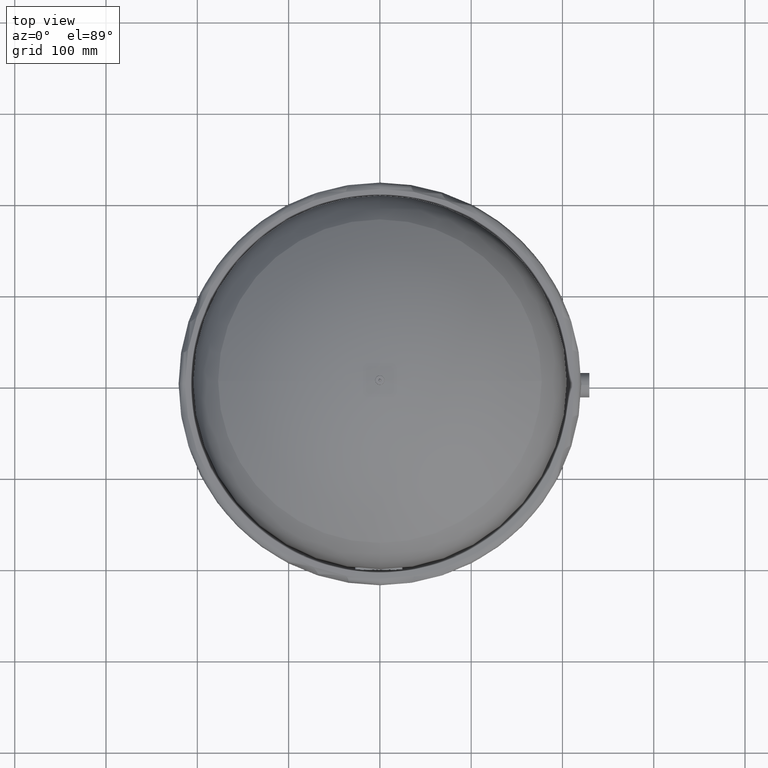
[diagram: clean part render]
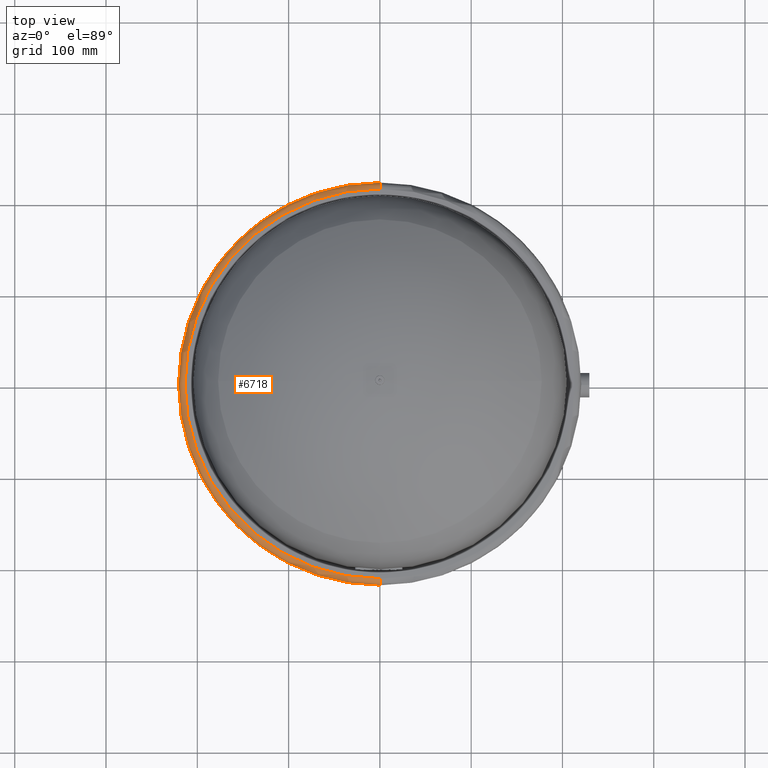
[diagram: same view with one face highlighted and labeled with its STEP entity id]
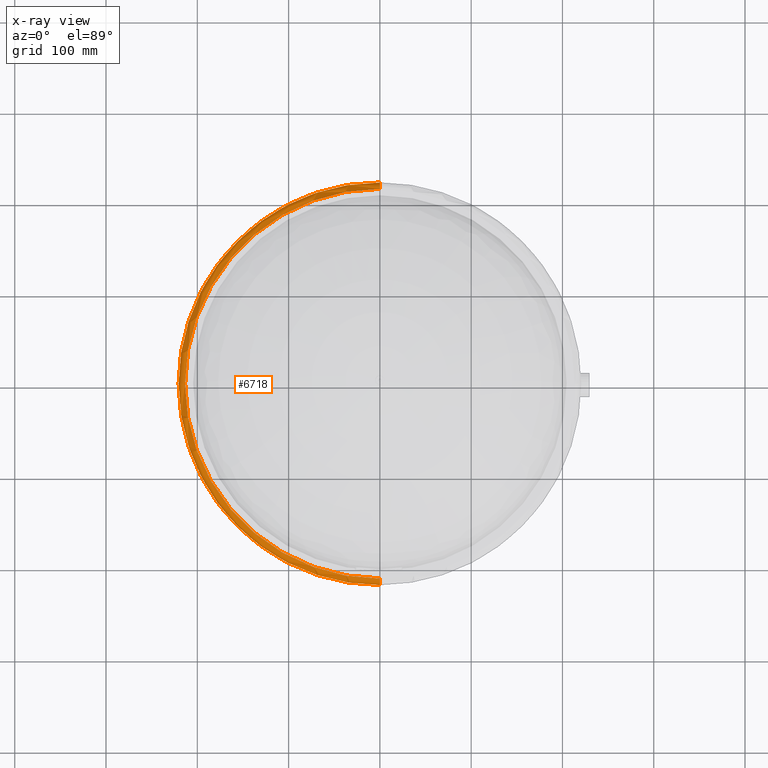
[diagram: x-ray of the same camera — body ghosted, the highlighted face saturated]
A machine part, top view. The second image highlights one B-rep face of the part: STEP entity #6718.
The next image is the same camera in x-ray: the body ghosted, the highlighted face saturated — about 0% of this face is hidden behind the body in this view.
In plain terms, the highlighted toroidal blend (fillet) surface has major radius 213.5 mm and minor (blend) radius 7 mm.
Its self-contained STEP definition (entity closure, byte-faithful):
#6622=CARTESIAN_POINT('',(-220.49999999999997,-2.296213E-016,255.25));
#6623=VERTEX_POINT('',#6622);
#6648=CARTESIAN_POINT('',(-2.700257E-014,-220.49999999999997,255.25));
#6649=VERTEX_POINT('',#6648);
#6657=CARTESIAN_POINT('',(0.0,-2.296213E-016,255.25));
#6658=DIRECTION('',(0.0,0.0,-1.0));
#6659=DIRECTION('',(-1.0,0.0,0.0));
#6660=AXIS2_PLACEMENT_3D('',#6657,#6658,#6659);
#6661=CIRCLE('',#6660,220.49999999999997);
#6662=EDGE_CURVE('',#6649,#6623,#6661,.T.);
#6667=CARTESIAN_POINT('',(0.0,-2.296213E-016,255.25));
#6668=DIRECTION('',(0.0,6.123234E-017,-1.0));
#6669=DIRECTION('',(0.0,1.0,0.0));
#6670=AXIS2_PLACEMENT_3D('',#6667,#6668,#6669);
#6671=TOROIDAL_SURFACE('',#6670,213.5,7.000000000000001);
#6672=CARTESIAN_POINT('',(0.0,220.49999999999997,255.25));
#6673=VERTEX_POINT('',#6672);
#6674=CARTESIAN_POINT('',(0.0,213.5,262.25));
#6675=VERTEX_POINT('',#6674);
#6676=CARTESIAN_POINT('',(0.0,213.5,255.25));
#6677=DIRECTION('',(1.0,0.0,0.0));
#6678=DIRECTION('',(0.0,1.0,0.0));
#6679=AXIS2_PLACEMENT_3D('',#6676,#6677,#6678);
#6680=CIRCLE('',#6679,7.000000000000001);
#6681=EDGE_CURVE('',#6673,#6675,#6680,.T.);
#6682=ORIENTED_EDGE('',*,*,#6681,.F.);
#6683=CARTESIAN_POINT('',(0.0,-2.296213E-016,255.25));
#6684=DIRECTION('',(0.0,0.0,-1.0));
#6685=DIRECTION('',(-1.0,0.0,0.0));
#6686=AXIS2_PLACEMENT_3D('',#6683,#6684,#6685);
#6687=CIRCLE('',#6686,220.49999999999997);
#6688=EDGE_CURVE('',#6623,#6673,#6687,.T.);
#6689=ORIENTED_EDGE('',*,*,#6688,.F.);
#6690=ORIENTED_EDGE('',*,*,#6662,.F.);
#6691=CARTESIAN_POINT('',(-2.614535E-014,-213.5,262.25));
#6692=VERTEX_POINT('',#6691);
#6693=CARTESIAN_POINT('',(-2.614535E-014,-213.5,255.25));
#6694=DIRECTION('',(-1.0,0.0,0.0));
#6695=DIRECTION('',(0.0,-1.0,0.0));
#6696=AXIS2_PLACEMENT_3D('',#6693,#6694,#6695);
#6697=CIRCLE('',#6696,7.000000000000001);
#6698=EDGE_CURVE('',#6649,#6692,#6697,.T.);
#6699=ORIENTED_EDGE('',*,*,#6698,.T.);
#6700=CARTESIAN_POINT('',(-213.5,-6.582477E-016,262.25));
#6701=VERTEX_POINT('',#6700);
#6702=CARTESIAN_POINT('',(0.0,-6.582477E-016,262.25));
#6703=DIRECTION('',(0.0,0.0,-1.0));
#6704=DIRECTION('',(-1.0,0.0,0.0));
#6705=AXIS2_PLACEMENT_3D('',#6702,#6703,#6704);
#6706=CIRCLE('',#6705,213.5);
#6707=EDGE_CURVE('',#6692,#6701,#6706,.T.);
#6708=ORIENTED_EDGE('',*,*,#6707,.T.);
#6709=CARTESIAN_POINT('',(0.0,-6.582477E-016,262.25));
#6710=DIRECTION('',(0.0,0.0,-1.0));
#6711=DIRECTION('',(-1.0,0.0,0.0));
#6712=AXIS2_PLACEMENT_3D('',#6709,#6710,#6711);
#6713=CIRCLE('',#6712,213.5);
#6714=EDGE_CURVE('',#6701,#6675,#6713,.T.);
#6715=ORIENTED_EDGE('',*,*,#6714,.T.);
#6716=EDGE_LOOP('',(#6682,#6689,#6690,#6699,#6708,#6715));
#6717=FACE_OUTER_BOUND('',#6716,.T.);
#6718=ADVANCED_FACE('',(#6717),#6671,.T.);